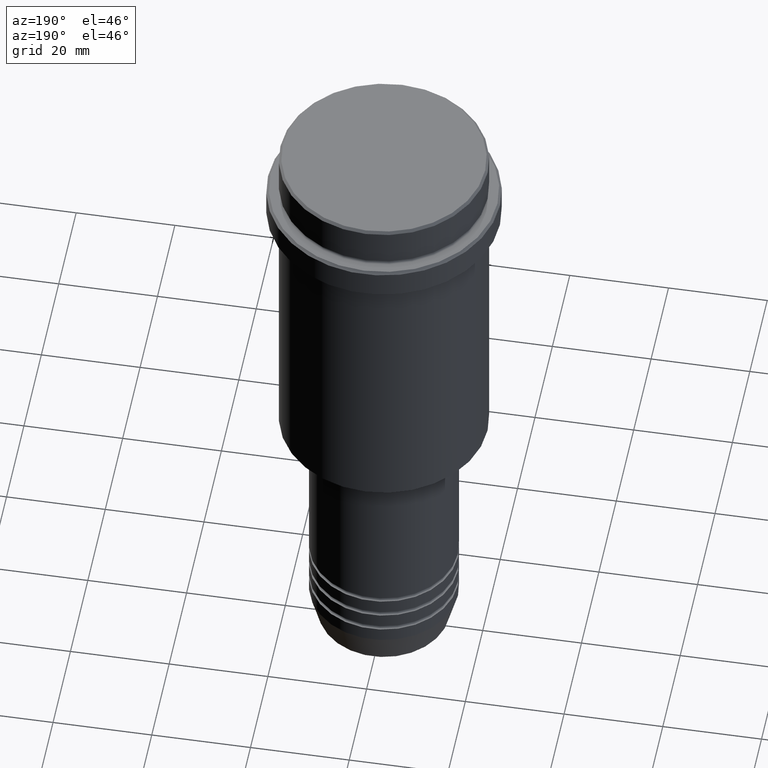
[diagram: clean part render]
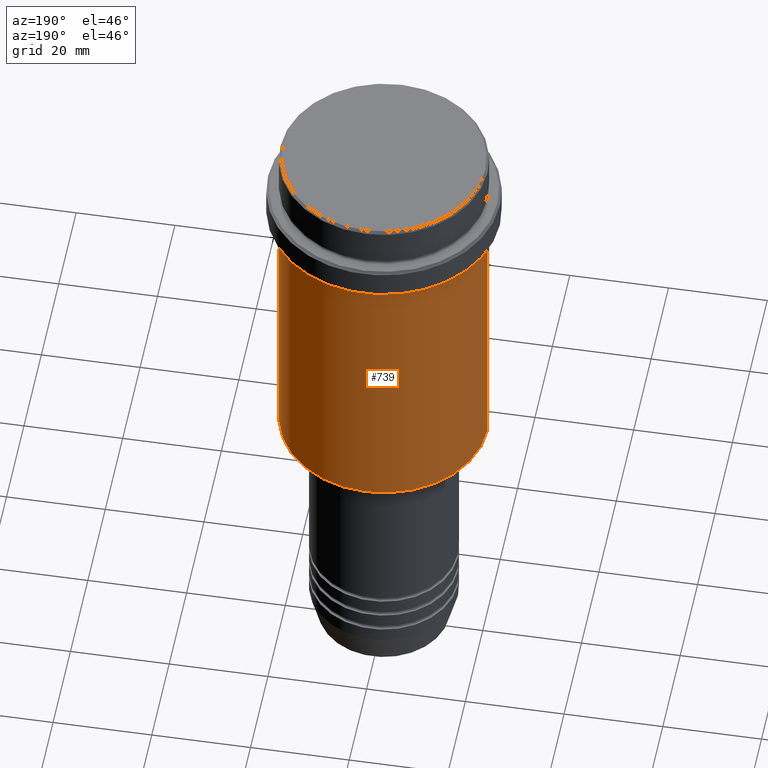
[diagram: same view with one face highlighted and labeled with its STEP entity id]
A machine part, auxiliary view. The second image highlights one B-rep face of the part: STEP entity #739.
In plain terms, the highlighted cylindrical surface (partial cylindrical patch) has radius 21 mm, axis along (-0, -0, 1).
Its self-contained STEP definition (entity closure, byte-faithful):
#12 = DIRECTION ( 'NONE',  ( -0.000000000000000000, -0.000000000000000000, 1.000000000000000000 ) ) ;
#67 = CARTESIAN_POINT ( 'NONE',  ( -21.00000000000000000, 2.571758278209441661E-15, -16.00000000000000355 ) ) ;
#103 = LINE ( 'NONE', #150, #380 ) ;
#115 = VERTEX_POINT ( 'NONE', #530 ) ;
#150 = CARTESIAN_POINT ( 'NONE',  ( 21.00000000000000000, 0.000000000000000000, 0.000000000000000000 ) ) ;
#185 = ORIENTED_EDGE ( 'NONE', *, *, #226, .T. ) ;
#226 = EDGE_CURVE ( 'NONE', #605, #1156, #897, .T. ) ;
#258 = FACE_OUTER_BOUND ( 'NONE', #857, .T. ) ;
#342 = CARTESIAN_POINT ( 'NONE',  ( 0.000000000000000000, 0.000000000000000000, -16.00000000000000355 ) ) ;
#354 = DIRECTION ( 'NONE',  ( -0.000000000000000000, -0.000000000000000000, 1.000000000000000000 ) ) ;
#380 = VECTOR ( 'NONE', #354, 1000.000000000000000 ) ;
#382 = CARTESIAN_POINT ( 'NONE',  ( 0.000000000000000000, 0.000000000000000000, 0.000000000000000000 ) ) ;
#433 = CARTESIAN_POINT ( 'NONE',  ( -21.00000000000000000, 2.571758278209441661E-15, 0.000000000000000000 ) ) ;
#450 = DIRECTION ( 'NONE',  ( 1.000000000000000000, 0.000000000000000000, 0.000000000000000000 ) ) ;
#468 = CARTESIAN_POINT ( 'NONE',  ( -21.00000000000000000, 2.571758278209441661E-15, -74.50000000000002842 ) ) ;
#505 = DIRECTION ( 'NONE',  ( 1.000000000000000000, 0.000000000000000000, 0.000000000000000000 ) ) ;
#530 = CARTESIAN_POINT ( 'NONE',  ( 21.00000000000000000, 0.000000000000000000, -74.50000000000002842 ) ) ;
#547 = ORIENTED_EDGE ( 'NONE', *, *, #644, .T. ) ;
#605 = VERTEX_POINT ( 'NONE', #468 ) ;
#607 = EDGE_CURVE ( 'NONE', #115, #1254, #103, .T. ) ;
#642 = CIRCLE ( 'NONE', #1362, 21.00000000000000000 ) ;
#644 = EDGE_CURVE ( 'NONE', #115, #605, #642, .T. ) ;
#711 = VECTOR ( 'NONE', #797, 1000.000000000000000 ) ;
#733 = CIRCLE ( 'NONE', #1099, 21.00000000000000000 ) ;
#739 = ADVANCED_FACE ( 'NONE', ( #258 ), #1375, .T. ) ;
#797 = DIRECTION ( 'NONE',  ( -0.000000000000000000, -0.000000000000000000, 1.000000000000000000 ) ) ;
#825 = AXIS2_PLACEMENT_3D ( 'NONE', #382, #833, #505 ) ;
#833 = DIRECTION ( 'NONE',  ( -0.000000000000000000, -0.000000000000000000, 1.000000000000000000 ) ) ;
#857 = EDGE_LOOP ( 'NONE', ( #547, #185, #1240, #930 ) ) ;
#897 = LINE ( 'NONE', #433, #711 ) ;
#921 = DIRECTION ( 'NONE',  ( -0.000000000000000000, -0.000000000000000000, 1.000000000000000000 ) ) ;
#930 = ORIENTED_EDGE ( 'NONE', *, *, #607, .F. ) ;
#1085 = EDGE_CURVE ( 'NONE', #1254, #1156, #733, .T. ) ;
#1099 = AXIS2_PLACEMENT_3D ( 'NONE', #342, #12, #450 ) ;
#1129 = CARTESIAN_POINT ( 'NONE',  ( 0.000000000000000000, 0.000000000000000000, -74.50000000000002842 ) ) ;
#1156 = VERTEX_POINT ( 'NONE', #67 ) ;
#1240 = ORIENTED_EDGE ( 'NONE', *, *, #1085, .F. ) ;
#1254 = VERTEX_POINT ( 'NONE', #1258 ) ;
#1258 = CARTESIAN_POINT ( 'NONE',  ( 21.00000000000000000, 0.000000000000000000, -16.00000000000000355 ) ) ;
#1347 = DIRECTION ( 'NONE',  ( -1.000000000000000000, 0.000000000000000000, 0.000000000000000000 ) ) ;
#1362 = AXIS2_PLACEMENT_3D ( 'NONE', #1129, #921, #1347 ) ;
#1375 = CYLINDRICAL_SURFACE ( 'NONE', #825, 21.00000000000000000 ) ;